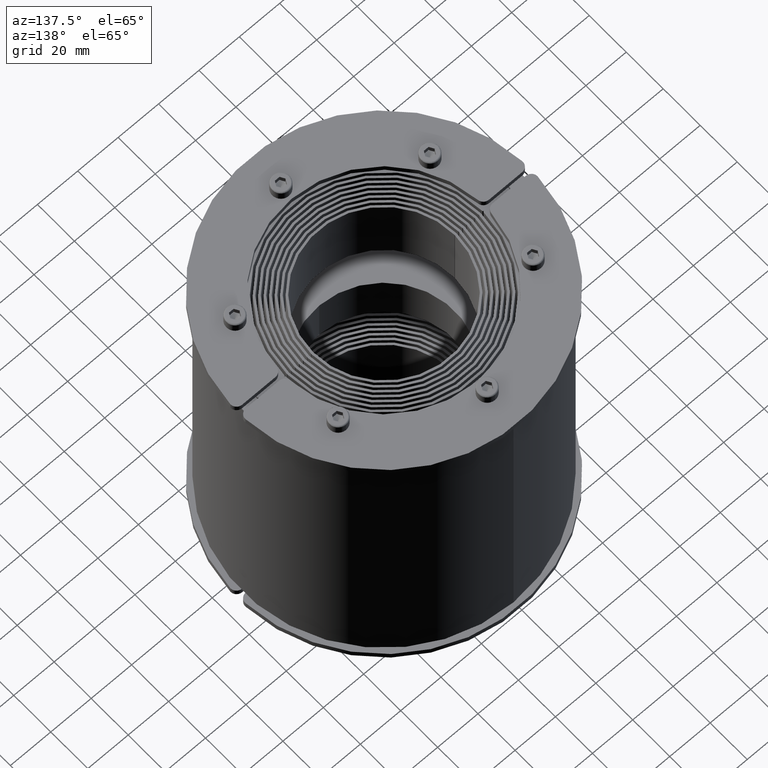
[diagram: clean part render]
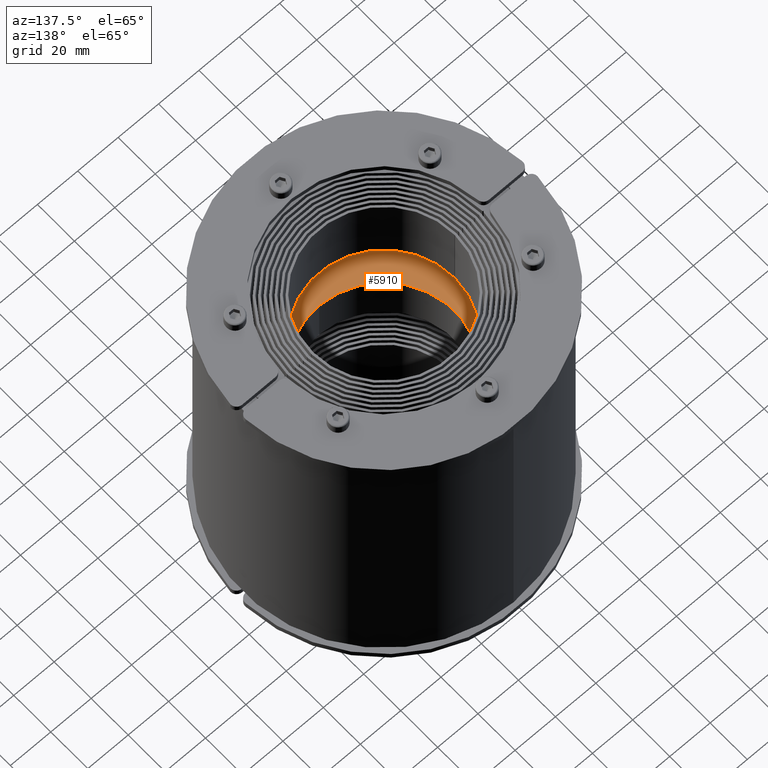
[diagram: same view with one face highlighted and labeled with its STEP entity id]
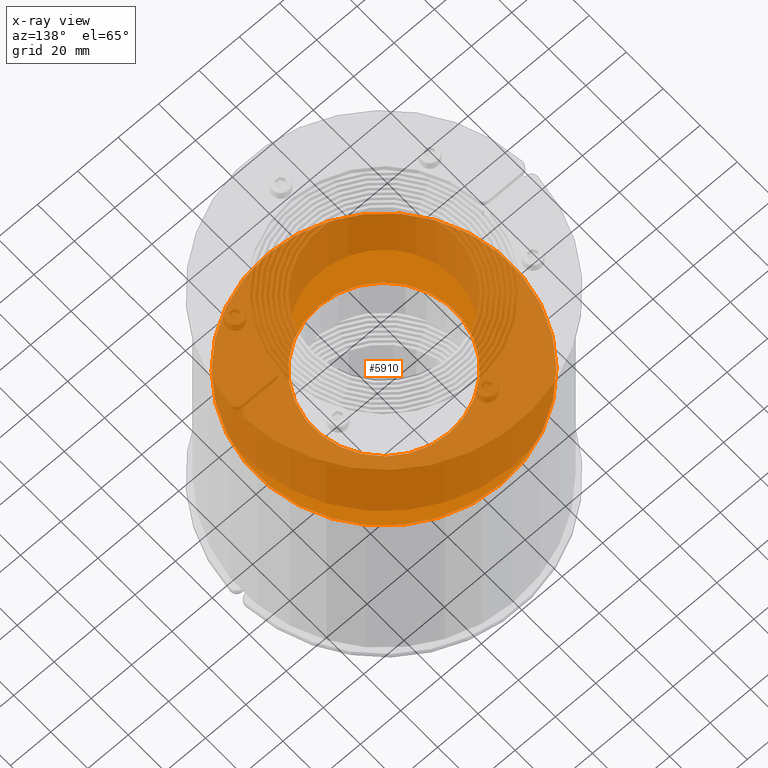
[diagram: x-ray of the same camera — body ghosted, the highlighted face saturated]
A machine part, auxiliary view. The second image highlights one B-rep face of the part: STEP entity #5910.
The next image is the same camera in x-ray: the body ghosted, the highlighted face saturated — about 84% of this face is hidden behind the body in this view.
In plain terms, the highlighted planar face has unit normal (0, 0, 1).
Its self-contained STEP definition (entity closure, byte-faithful):
#5772=CARTESIAN_POINT('',(0.0,-35.0,12.500000000000000));
#5773=VERTEX_POINT('',#5772);
#5789=CARTESIAN_POINT('',(4.286122E-015,35.0,12.500000000000000));
#5790=VERTEX_POINT('',#5789);
#5797=CARTESIAN_POINT('',(0.0,0.0,12.500000000000000));
#5798=DIRECTION('',(0.0,0.0,1.0));
#5799=DIRECTION('',(0.0,-1.0,0.0));
#5800=AXIS2_PLACEMENT_3D('',#5797,#5798,#5799);
#5801=CIRCLE('',#5800,35.0);
#5802=EDGE_CURVE('',#5790,#5773,#5801,.T.);
#5814=CARTESIAN_POINT('',(0.0,-63.0,12.500000000000000));
#5815=VERTEX_POINT('',#5814);
#5831=CARTESIAN_POINT('',(7.715020E-015,63.0,12.500000000000000));
#5832=VERTEX_POINT('',#5831);
#5839=CARTESIAN_POINT('',(0.0,0.0,12.500000000000000));
#5840=DIRECTION('',(0.0,0.0,-1.0));
#5841=DIRECTION('',(0.0,-1.0,0.0));
#5842=AXIS2_PLACEMENT_3D('',#5839,#5840,#5841);
#5843=CIRCLE('',#5842,63.0);
#5844=EDGE_CURVE('',#5832,#5815,#5843,.T.);
#5855=CARTESIAN_POINT('',(0.0,0.0,12.500000000000000));
#5856=DIRECTION('',(0.0,0.0,-1.0));
#5857=DIRECTION('',(0.0,-1.0,0.0));
#5858=AXIS2_PLACEMENT_3D('',#5855,#5856,#5857);
#5859=CIRCLE('',#5858,63.0);
#5860=EDGE_CURVE('',#5815,#5832,#5859,.T.);
#5879=CARTESIAN_POINT('',(0.0,0.0,12.500000000000000));
#5880=DIRECTION('',(0.0,0.0,1.0));
#5881=DIRECTION('',(0.0,-1.0,0.0));
#5882=AXIS2_PLACEMENT_3D('',#5879,#5880,#5881);
#5883=CIRCLE('',#5882,35.0);
#5884=EDGE_CURVE('',#5773,#5790,#5883,.T.);
#5897=CARTESIAN_POINT('',(-1.136868E-013,-4.818181818181813,12.500000000000000));
#5898=DIRECTION('',(0.0,0.0,1.0));
#5899=DIRECTION('',(1.0,0.0,0.0));
#5900=AXIS2_PLACEMENT_3D('',#5897,#5898,#5899);
#5901=PLANE('',#5900);
#5902=ORIENTED_EDGE('',*,*,#5860,.F.);
#5903=ORIENTED_EDGE('',*,*,#5844,.F.);
#5904=EDGE_LOOP('',(#5902,#5903));
#5905=FACE_OUTER_BOUND('',#5904,.T.);
#5906=ORIENTED_EDGE('',*,*,#5884,.F.);
#5907=ORIENTED_EDGE('',*,*,#5802,.F.);
#5908=EDGE_LOOP('',(#5906,#5907));
#5909=FACE_BOUND('',#5908,.T.);
#5910=ADVANCED_FACE('',(#5905,#5909),#5901,.T.);